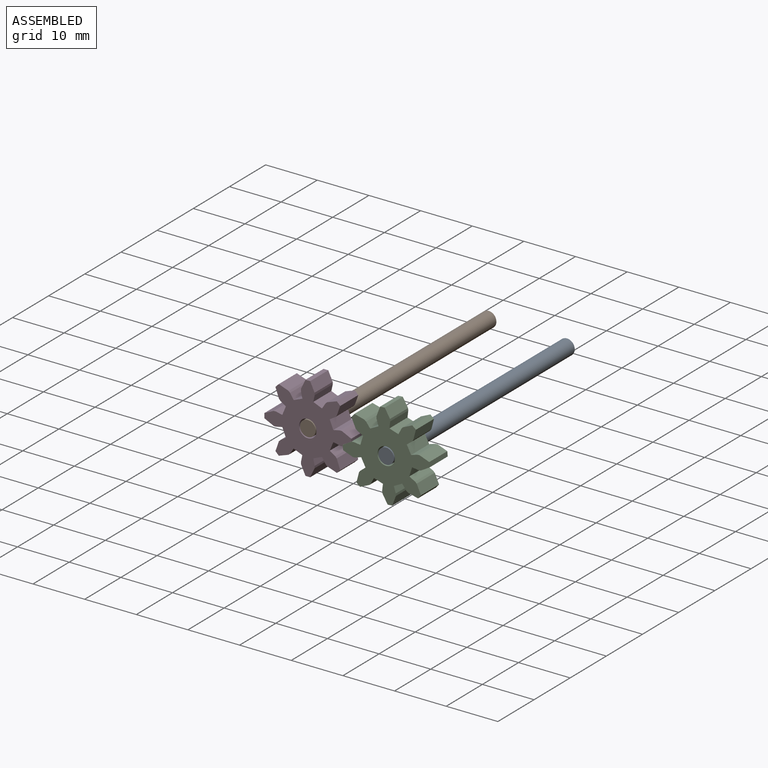
[diagram: assembled view]
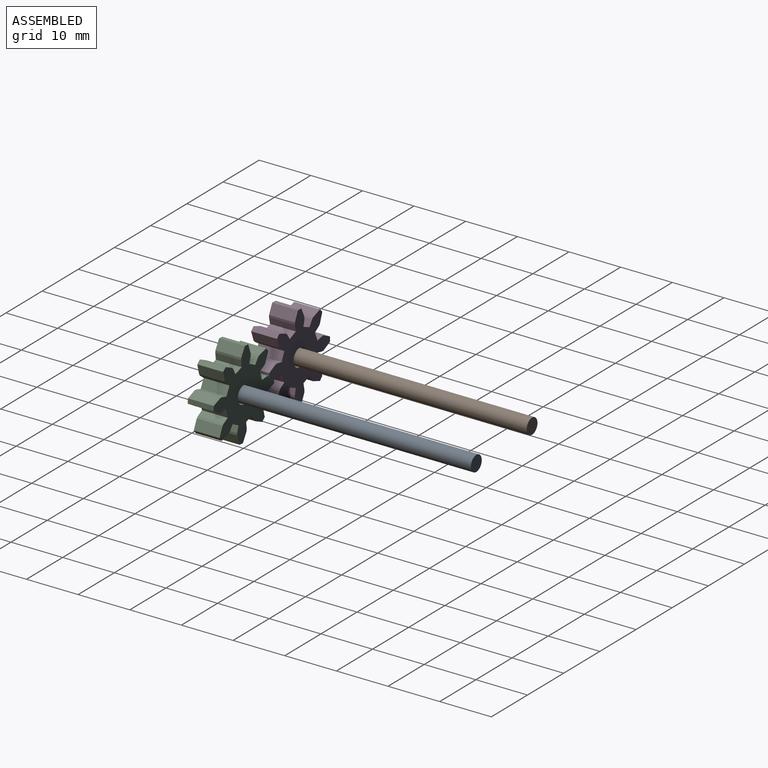
[diagram: assembled view, second angle]
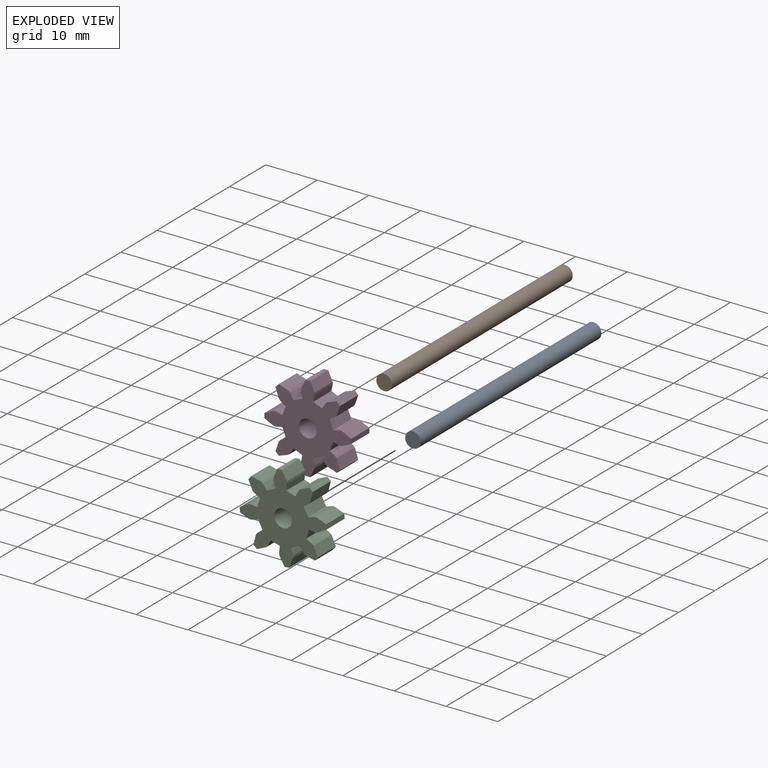
[diagram: exploded view]
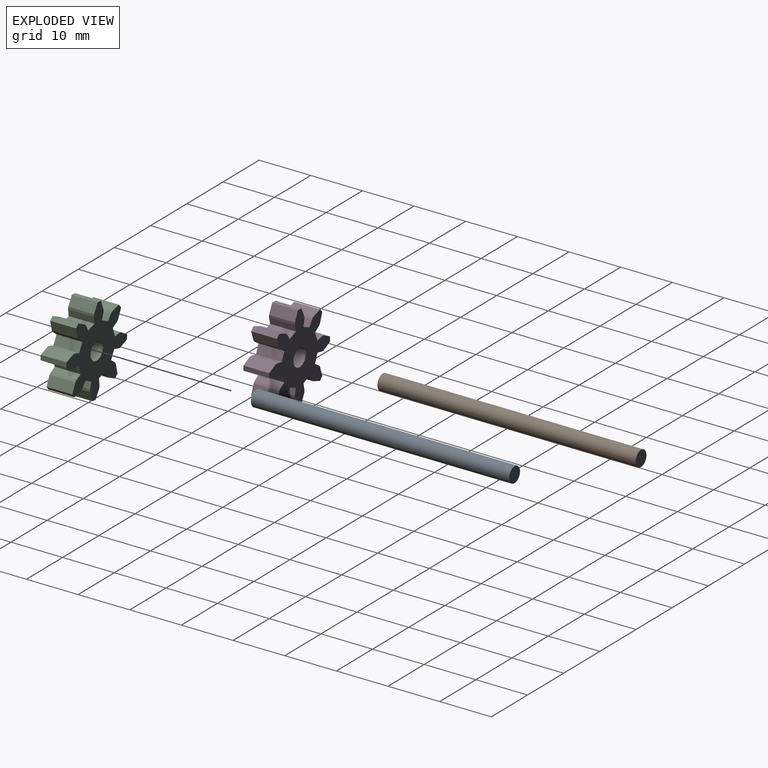
[diagram: exploded view, second angle]
ASSEMBLY  parts=4 mates=2
PART A: 3 faces, bbox 3x50x3 mm
  f0: cylinder r=1.5mm len=50mm, axis (0,1,0), area 471.2mm2, adj f1,f2
  f1: plane 3x3mm, normal (0,-1,0), area 7.1mm2, adj f0
  f2: plane 3x3mm, normal (0,1,0), area 7.1mm2, adj f0
PART B: same geometry as A
PART C: 67 faces, bbox 16.8x5x16.8 mm
  f0: plane 5x1.25mm, normal (-0.21,0,0.98), area 6.4mm2, adj f1,f63,f64,f65
  f1: plane 5x1.69mm, normal (0.92,0,0.38), area 9.1mm2, adj f0,f2,f64,f65
  f2: plane 5x1.07mm, normal (0.54,0,-0.84), area 6.4mm2, adj f1,f3,f64,f65
  f3: plane 5x0.3mm, normal (0.73,0,-0.68), area 2.1mm2, adj f2,f4,f64,f65
  f4: plane 5x1.88mm, normal (0.94,0,-0.33), area 10mm2, adj f3,f5,f64,f65
  f5: plane 5x0.64mm, normal (0.71,0,0.71), area 4.6mm2, adj f4,f6,f64,f65
  f6: plane 5x1.88mm, normal (-0.33,0,0.94), area 10mm2, adj f5,f7,f64,f65
  f7: plane 5x0.3mm, normal (-0.68,0,0.73), area 2.1mm2, adj f6,f8,f64,f65
  f8: plane 5x1.07mm, normal (-0.84,0,0.54), area 6.4mm2, adj f7,f9,f64,f65
  f9: plane 5x1.69mm, normal (0.38,0,0.92), area 9.1mm2, adj f8,f10,f64,f65
  f10: plane 5x1.25mm, normal (0.98,0,-0.21), area 6.4mm2, adj f9,f11,f64,f65
  f11: plane 5x0.42mm, normal (1,0,0.03), area 2.1mm2, adj f10,f12,f64,f65
  f12: plane 5x1.8mm, normal (0.9,0,0.43), area 10mm2, adj f11,f13,f64,f65
  f13: plane 5x0.91mm, normal (0,0,1), area 4.6mm2, adj f12,f14,f64,f65
  f14: plane 5x1.8mm, normal (-0.9,0,0.43), area 10mm2, adj f13,f15,f64,f65
  f15: plane 5x0.42mm, normal (-1,0,0.03), area 2.1mm2, adj f14,f16,f64,f65
  f16: plane 5x1.25mm, normal (-0.98,0,-0.21), area 6.4mm2, adj f15,f17,f64,f65
  f17: plane 5x1.69mm, normal (-0.38,0,0.92), area 9.1mm2, adj f16,f18,f64,f65
  f18: plane 5x1.07mm, normal (0.84,0,0.54), area 6.4mm2, adj f17,f19,f64,f65
  f19: plane 5x0.3mm, normal (0.68,0,0.73), area 2.1mm2, adj f18,f20,f64,f65
  f20: plane 5x1.88mm, normal (0.33,0,0.94), area 10mm2, adj f19,f21,f64,f65
  f21: plane 5x0.64mm, normal (-0.71,0,0.71), area 4.6mm2, adj f20,f22,f64,f65
  f22: plane 5x1.88mm, normal (-0.94,0,-0.33), area 10mm2, adj f21,f23,f64,f65
  f23: plane 5x0.3mm, normal (-0.73,0,-0.68), area 2.1mm2, adj f22,f24,f64,f65
  f24: plane 5x1.07mm, normal (-0.54,0,-0.84), area 6.4mm2, adj f23,f25,f64,f65
  f25: plane 5x1.69mm, normal (-0.92,0,0.38), area 9.1mm2, adj f24,f26,f64,f65
  f26: plane 5x1.25mm, normal (0.21,0,0.98), area 6.4mm2, adj f25,f27,f64,f65
  f27: plane 5x0.42mm, normal (-0.03,0,1), area 2.1mm2, adj f26,f28,f64,f65
  f28: plane 5x1.8mm, normal (-0.43,0,0.9), area 10mm2, adj f27,f29,f64,f65
  f29: plane 5x0.91mm, normal (-1,0,0), area 4.6mm2, adj f28,f30,f64,f65
  f30: plane 5x1.8mm, normal (-0.43,0,-0.9), area 10mm2, adj f29,f31,f64,f65
  f31: plane 5x0.42mm, normal (-0.03,0,-1), area 2.1mm2, adj f30,f32,f64,f65
  f32: plane 5x1.25mm, normal (0.21,0,-0.98), area 6.4mm2, adj f31,f33,f64,f65
  f33: plane 5x1.69mm, normal (-0.92,0,-0.38), area 9.1mm2, adj f32,f34,f64,f65
  f34: plane 5x1.07mm, normal (-0.54,0,0.84), area 6.4mm2, adj f33,f35,f64,f65
  f35: plane 5x0.3mm, normal (-0.73,0,0.68), area 2.1mm2, adj f34,f36,f64,f65
  f36: plane 5x1.88mm, normal (-0.94,0,0.33), area 10mm2, adj f35,f37,f64,f65
  f37: plane 5x0.64mm, normal (-0.71,0,-0.71), area 4.6mm2, adj f36,f38,f64,f65
  f38: plane 5x1.88mm, normal (0.33,0,-0.94), area 10mm2, adj f37,f39,f64,f65
  f39: plane 5x0.3mm, normal (0.68,0,-0.73), area 2.1mm2, adj f38,f40,f64,f65
  f40: plane 5x1.07mm, normal (0.84,0,-0.54), area 6.4mm2, adj f39,f41,f64,f65
  f41: plane 5x1.69mm, normal (-0.38,0,-0.92), area 9.1mm2, adj f40,f42,f64,f65
  f42: plane 5x1.25mm, normal (-0.98,0,0.21), area 6.4mm2, adj f41,f43,f64,f65
  f43: plane 5x0.42mm, normal (-1,0,-0.03), area 2.1mm2, adj f42,f44,f64,f65
  f44: plane 5x1.8mm, normal (-0.9,0,-0.43), area 10mm2, adj f43,f45,f64,f65
  f45: plane 5x0.91mm, normal (0,0,-1), area 4.6mm2, adj f44,f46,f64,f65
  f46: plane 5x1.8mm, normal (0.9,0,-0.43), area 10mm2, adj f45,f47,f64,f65
  f47: plane 5x0.42mm, normal (1,0,-0.03), area 2.1mm2, adj f46,f48,f64,f65
  f48: plane 5x1.25mm, normal (0.98,0,0.21), area 6.4mm2, adj f47,f49,f64,f65
  f49: plane 5x1.69mm, normal (0.38,0,-0.92), area 9.1mm2, adj f48,f50,f64,f65
  f50: plane 5x1.07mm, normal (-0.84,0,-0.54), area 6.4mm2, adj f49,f51,f64,f65
  f51: plane 5x0.3mm, normal (-0.68,0,-0.73), area 2.1mm2, adj f50,f52,f64,f65
  f52: plane 5x1.88mm, normal (-0.33,0,-0.94), area 10mm2, adj f51,f53,f64,f65
  f53: plane 5x0.64mm, normal (0.71,0,-0.71), area 4.6mm2, adj f52,f54,f64,f65
  f54: plane 5x1.88mm, normal (0.94,0,0.33), area 10mm2, adj f53,f55,f64,f65
  f55: plane 5x0.3mm, normal (0.73,0,0.68), area 2.1mm2, adj f54,f56,f64,f65
  f56: plane 5x1.07mm, normal (0.54,0,0.84), area 6.4mm2, adj f55,f57,f64,f65
  f57: plane 5x1.69mm, normal (0.92,0,-0.38), area 9.1mm2, adj f56,f58,f64,f65
  f58: plane 5x1.25mm, normal (-0.21,0,-0.98), area 6.4mm2, adj f57,f59,f64,f65
  f59: plane 5x0.42mm, normal (0.03,0,-1), area 2.1mm2, adj f58,f60,f64,f65
  f60: plane 5x1.8mm, normal (0.43,0,-0.9), area 10mm2, adj f59,f61,f64,f65
  f61: plane 5x0.91mm, normal (1,0,0), area 4.6mm2, adj f60,f62,f64,f65
  f62: plane 5x1.8mm, normal (0.43,0,0.9), area 10mm2, adj f61,f63,f64,f65
  f63: plane 5x0.42mm, normal (0.03,0,1), area 2.1mm2, adj f0,f62,f64,f65
  f64: plane 16.82x16.82mm, normal (0,-1,0), area 127.3mm2, adj f0,f1,f2,f3,f4,f5,f6,f7
  f65: plane 16.82x16.82mm, normal (0,1,0), area 127.3mm2, adj f0,f1,f2,f3,f4,f5,f6,f7
  f66: cylinder r=1.7mm len=5mm, axis (0,1,0), area 53.4mm2, adj f64,f65
PART D: same geometry as C
PLACE A rot(axis=(0,1,0),5deg) t=(28.5,45,-1.27)mm
PLACE B t=(13.32,45.11,1.07)mm
PLACE C rot(axis=(0,-1,0),5deg) t=(9.87,0,0.36)mm
PLACE D t=(-5.38,0.11,1.07)mm
MATE revolute B.f0 <-> D.f66  axis (0,-1,0) through (-5.38,-4.89,1.07)mm
MATE revolute A.f0 <-> C.f66  axis (0,-1,0) through (9.87,-5,0.36)mm
